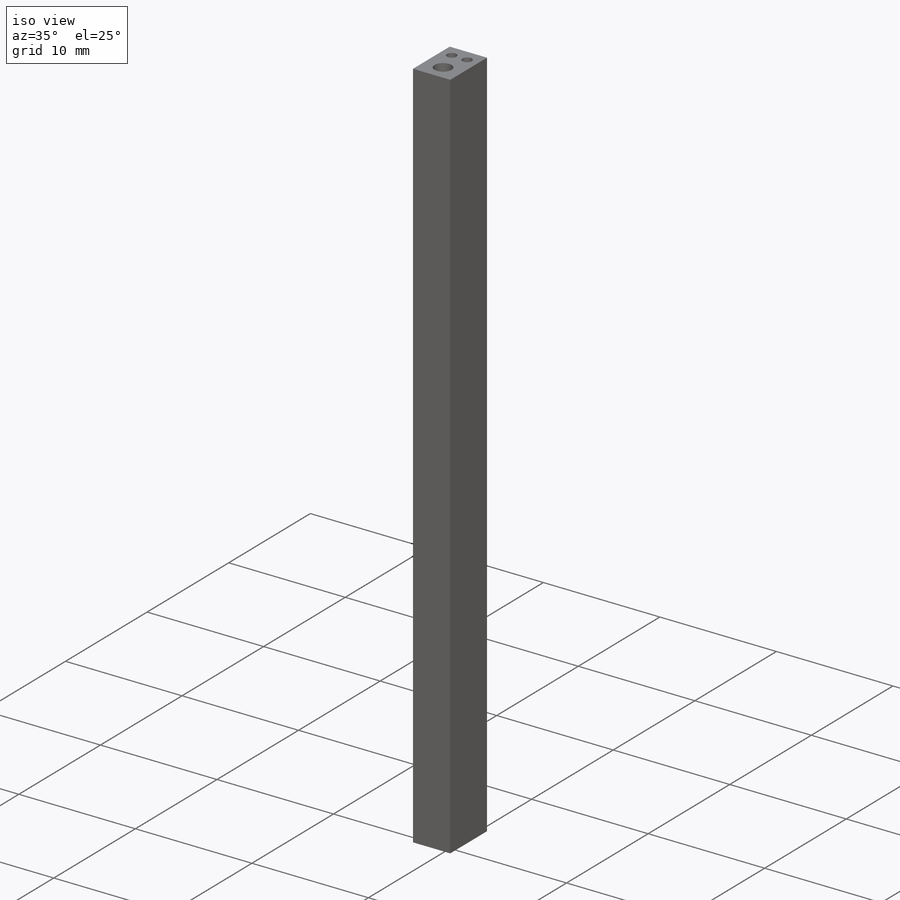
[diagram: iso view]
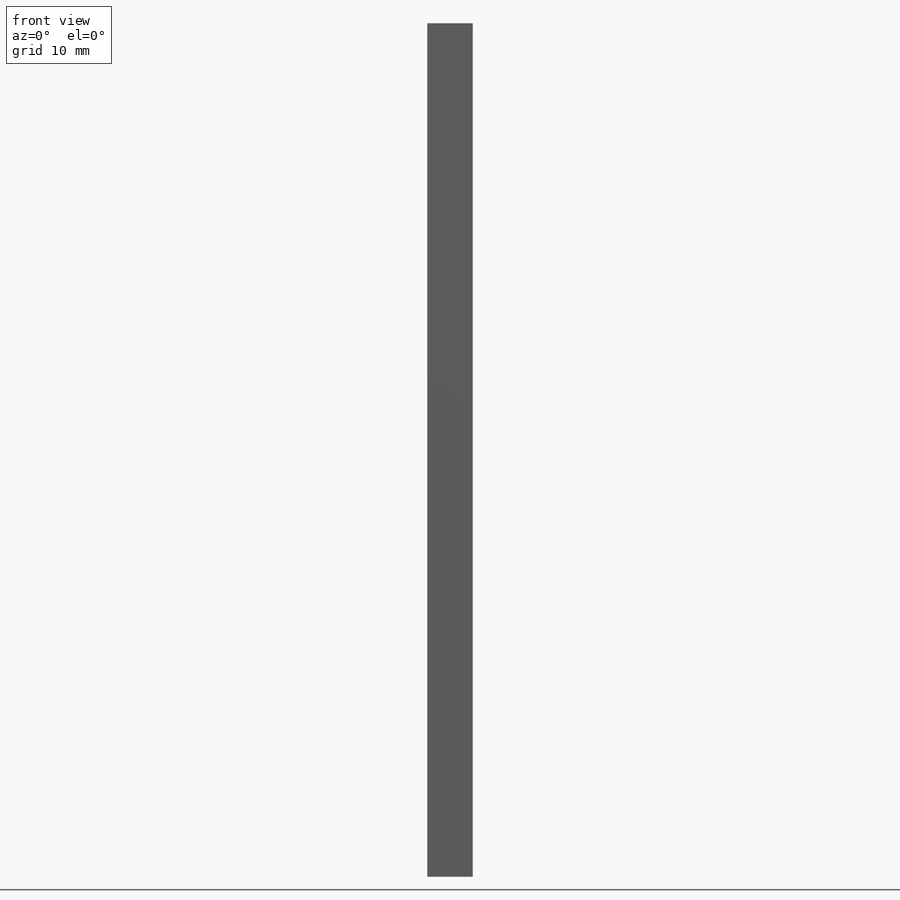
[diagram: front view]
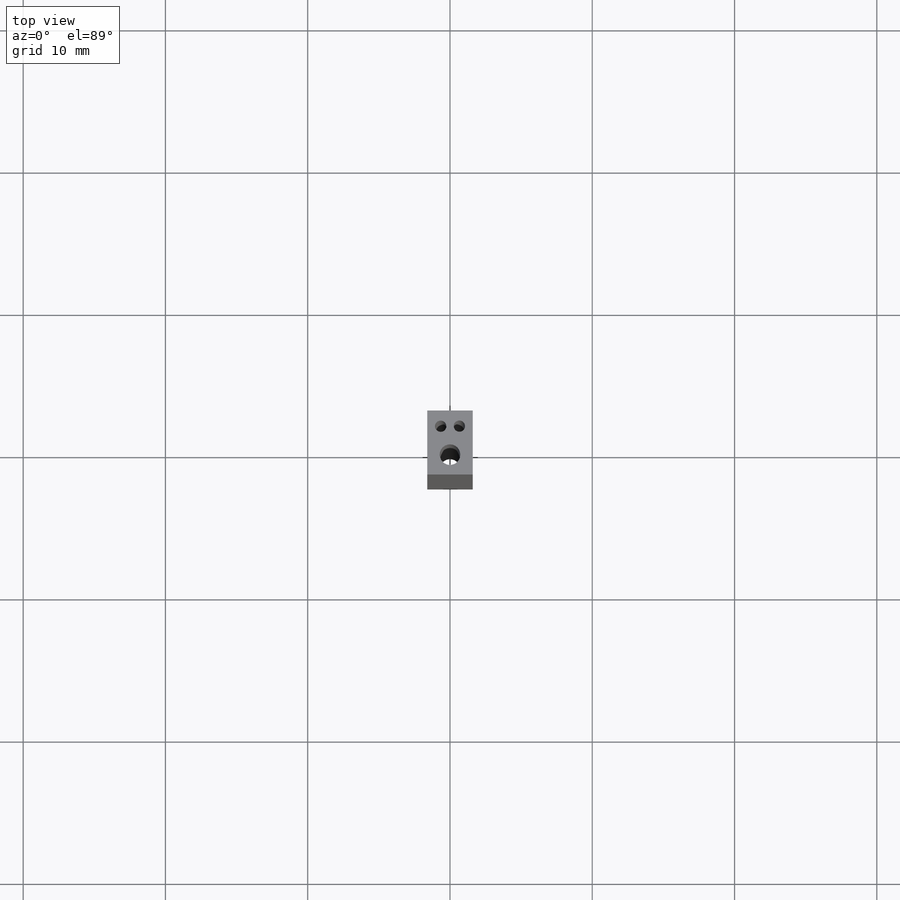
[diagram: top view]
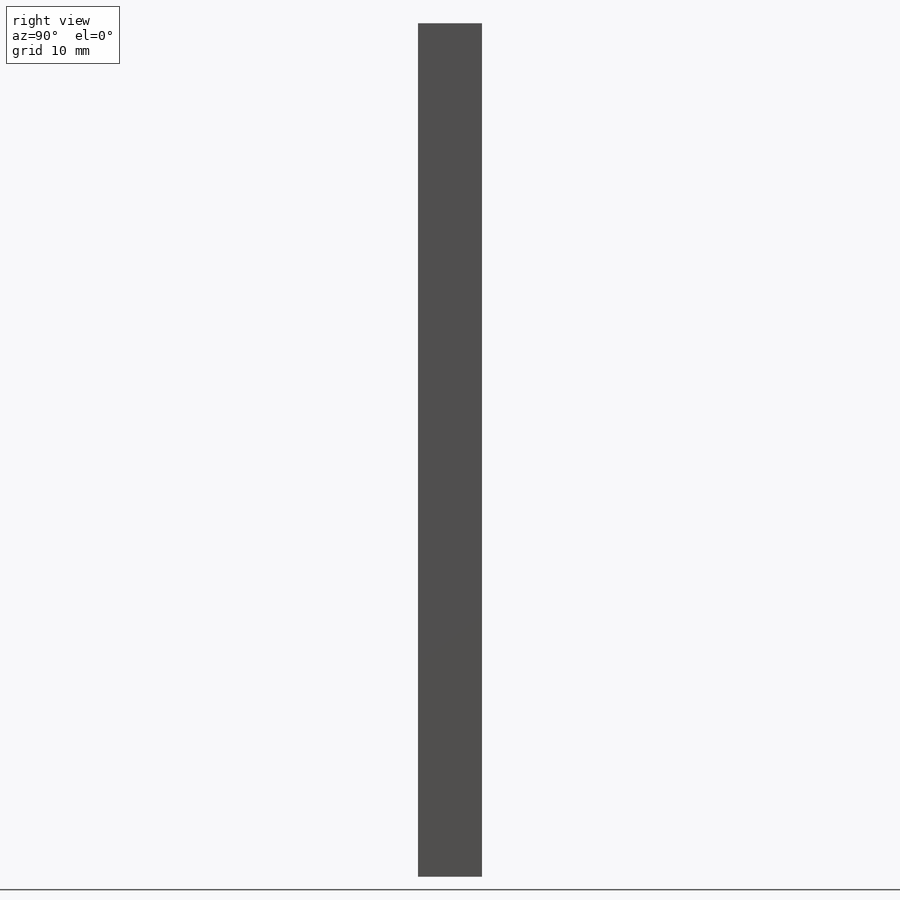
[diagram: right view]
SOLIDWORKS PART (.sldprt)
format: sldprt  version: not decoded by parser v0  size: 162,304 bytes
history: native  units: mm
features: sketch x4, cut_extrude x3, material x1, extrude x1 + 1 further entry (+12 scaffold rows collapsed)
feature tree (22):
  scaffold x12  (default folders/planes/origin — collapsed)
  material  "Material <not specified>"
  "Annotations"  RD1=60mm
  sketch  "Sketch2"  dims[D1=3.2mm D2=4.5mm]
  extrude  "Boss-Extrude1"  Depth=60mm
  sketch  "Sketch5"  dims[D1=1.45mm]
  cut_extrude  "Cut-Extrude1"  [1 undecoded]
  sketch  "Sketch6"  dims[D1=0.8mm D2=2.1mm]
  cut_extrude  "Cut-Extrude2"  [1 undecoded]
  sketch  "Sketch7"  dims[c1.D1=0.8mm c1.D2=0.8mm c1.D3=0.8mm c2.D2=2.3mm c3.D2=1.97mm c3.D3=2.3mm c4.D2=2.1082mm c4.D3=~1.243305mm]
  cut_extrude  "Cut-Extrude3"  [1 undecoded]
decode coverage: 5 of 8 modeling features carry decoded parameters; 1 rows unclassified (native names shown)
note: ~ marks probable driven/reference dimensions
note: 3 parameter values undecoded
summary: no parameter record found for 3 features
note: suppression state not decoded; provenance and decode notes live in map.json
